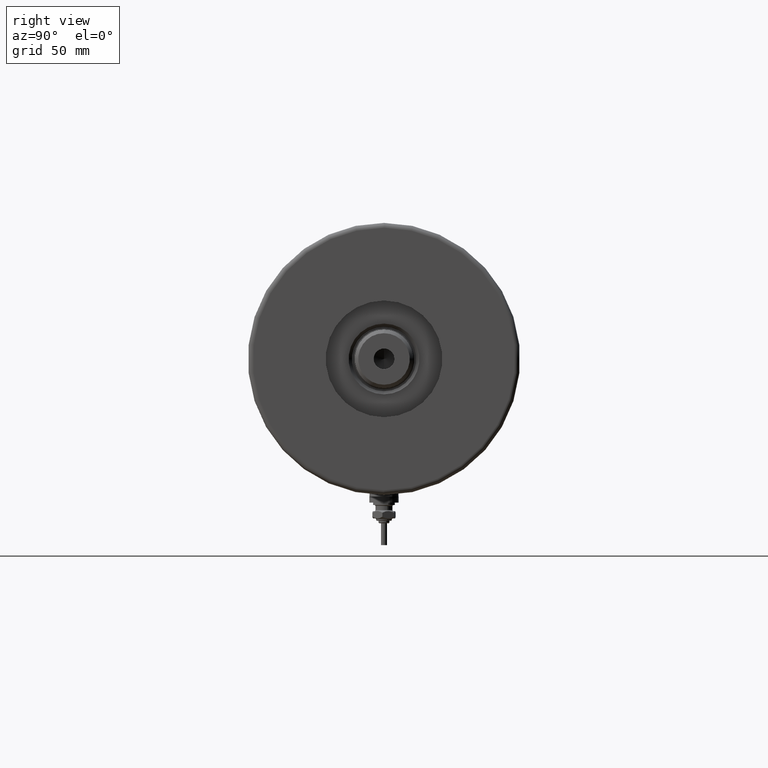
[diagram: clean part render]
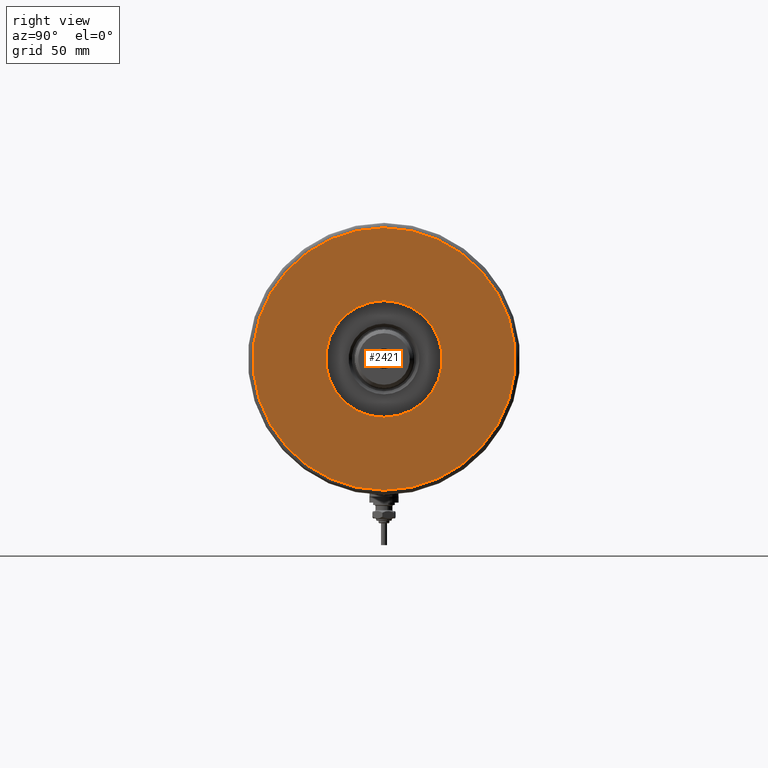
[diagram: same view with one face highlighted and labeled with its STEP entity id]
A machine part, right view. The second image highlights one B-rep face of the part: STEP entity #2421.
In plain terms, the highlighted planar face has unit normal (1, 0, -0).
Its self-contained STEP definition (entity closure, byte-faithful):
#55 = EDGE_LOOP ( 'NONE', ( #5367, #974 ) ) ;
#320 = AXIS2_PLACEMENT_3D ( 'NONE', #2104, #5978, #5466 ) ;
#742 = DIRECTION ( 'NONE',  ( 1.000000000000000000, 0.000000000000000000, 0.000000000000000000 ) ) ;
#838 = AXIS2_PLACEMENT_3D ( 'NONE', #5090, #3082, #742 ) ;
#974 = ORIENTED_EDGE ( 'NONE', *, *, #3098, .F. ) ;
#1143 = AXIS2_PLACEMENT_3D ( 'NONE', #3413, #5785, #5749 ) ;
#1234 = CIRCLE ( 'NONE', #3493, 24.00000000000000355 ) ;
#1241 = CARTESIAN_POINT ( 'NONE',  ( -24.00000000000000355, 2.939152317953648289E-15, 32.00000000000000000 ) ) ;
#1289 = ORIENTED_EDGE ( 'NONE', *, *, #4374, .T. ) ;
#1497 = CARTESIAN_POINT ( 'NONE',  ( 0.000000000000000000, 0.000000000000000000, 32.00000000000000000 ) ) ;
#2095 = CARTESIAN_POINT ( 'NONE',  ( 24.00000000000000355, 0.000000000000000000, 32.00000000000000000 ) ) ;
#2104 = CARTESIAN_POINT ( 'NONE',  ( 0.000000000000000000, 0.000000000000000000, 32.00000000000000000 ) ) ;
#2271 = ORIENTED_EDGE ( 'NONE', *, *, #5600, .T. ) ;
#2421 = ADVANCED_FACE ( 'NONE', ( #5378, #2568 ), #5520, .T. ) ;
#2568 = FACE_BOUND ( 'NONE', #55, .T. ) ;
#2873 = AXIS2_PLACEMENT_3D ( 'NONE', #6062, #4627, #3242 ) ;
#3082 = DIRECTION ( 'NONE',  ( 0.000000000000000000, 0.000000000000000000, 1.000000000000000000 ) ) ;
#3093 = CIRCLE ( 'NONE', #838, 54.00000000000000000 ) ;
#3098 = EDGE_CURVE ( 'NONE', #3232, #4562, #1234, .T. ) ;
#3133 = CARTESIAN_POINT ( 'NONE',  ( 54.00000000000000000, 0.000000000000000000, 32.00000000000000000 ) ) ;
#3137 = EDGE_LOOP ( 'NONE', ( #1289, #2271 ) ) ;
#3232 = VERTEX_POINT ( 'NONE', #1241 ) ;
#3242 = DIRECTION ( 'NONE',  ( 1.000000000000000000, 0.000000000000000000, 0.000000000000000000 ) ) ;
#3294 = VERTEX_POINT ( 'NONE', #3133 ) ;
#3413 = CARTESIAN_POINT ( 'NONE',  ( 0.000000000000000000, 0.000000000000000000, 32.00000000000000000 ) ) ;
#3493 = AXIS2_PLACEMENT_3D ( 'NONE', #1497, #5865, #3948 ) ;
#3930 = CIRCLE ( 'NONE', #1143, 54.00000000000000000 ) ;
#3948 = DIRECTION ( 'NONE',  ( 1.000000000000000000, 0.000000000000000000, 0.000000000000000000 ) ) ;
#4330 = EDGE_CURVE ( 'NONE', #4562, #3232, #4837, .T. ) ;
#4374 = EDGE_CURVE ( 'NONE', #3294, #5467, #3930, .T. ) ;
#4562 = VERTEX_POINT ( 'NONE', #2095 ) ;
#4627 = DIRECTION ( 'NONE',  ( 0.000000000000000000, 0.000000000000000000, 1.000000000000000000 ) ) ;
#4837 = CIRCLE ( 'NONE', #2873, 24.00000000000000355 ) ;
#5090 = CARTESIAN_POINT ( 'NONE',  ( 0.000000000000000000, 0.000000000000000000, 32.00000000000000000 ) ) ;
#5367 = ORIENTED_EDGE ( 'NONE', *, *, #4330, .F. ) ;
#5378 = FACE_OUTER_BOUND ( 'NONE', #3137, .T. ) ;
#5466 = DIRECTION ( 'NONE',  ( 1.000000000000000000, 0.000000000000000000, -0.000000000000000000 ) ) ;
#5467 = VERTEX_POINT ( 'NONE', #5892 ) ;
#5520 = PLANE ( 'NONE',  #320 ) ;
#5600 = EDGE_CURVE ( 'NONE', #5467, #3294, #3093, .T. ) ;
#5749 = DIRECTION ( 'NONE',  ( 1.000000000000000000, 0.000000000000000000, 0.000000000000000000 ) ) ;
#5785 = DIRECTION ( 'NONE',  ( 0.000000000000000000, 0.000000000000000000, 1.000000000000000000 ) ) ;
#5865 = DIRECTION ( 'NONE',  ( 0.000000000000000000, 0.000000000000000000, 1.000000000000000000 ) ) ;
#5892 = CARTESIAN_POINT ( 'NONE',  ( -54.00000000000000000, 6.735557395310443404E-15, 32.00000000000000000 ) ) ;
#5978 = DIRECTION ( 'NONE',  ( 0.000000000000000000, 0.000000000000000000, 1.000000000000000000 ) ) ;
#6062 = CARTESIAN_POINT ( 'NONE',  ( 0.000000000000000000, 0.000000000000000000, 32.00000000000000000 ) ) ;